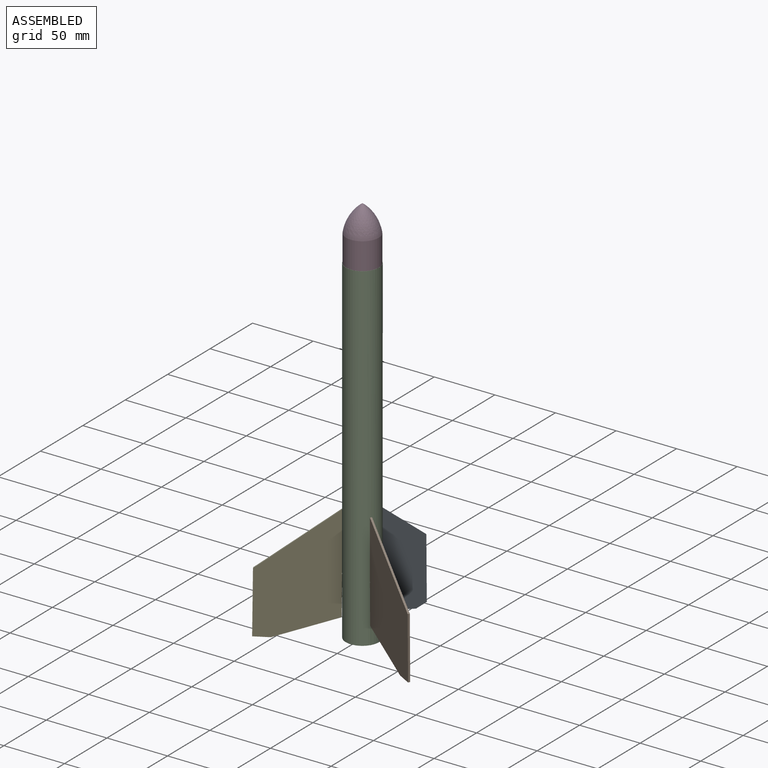
[diagram: assembled view]
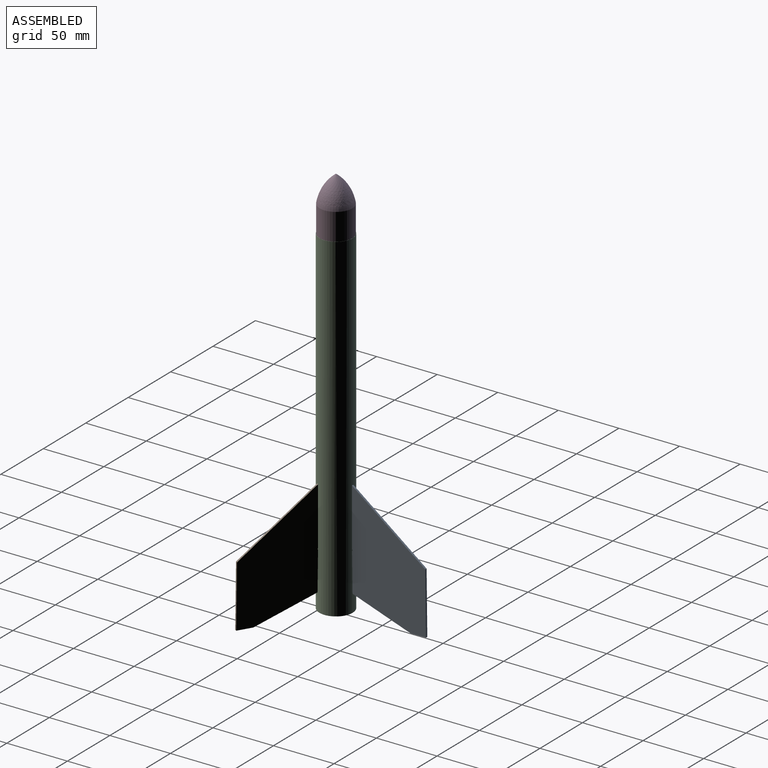
[diagram: assembled view, second angle]
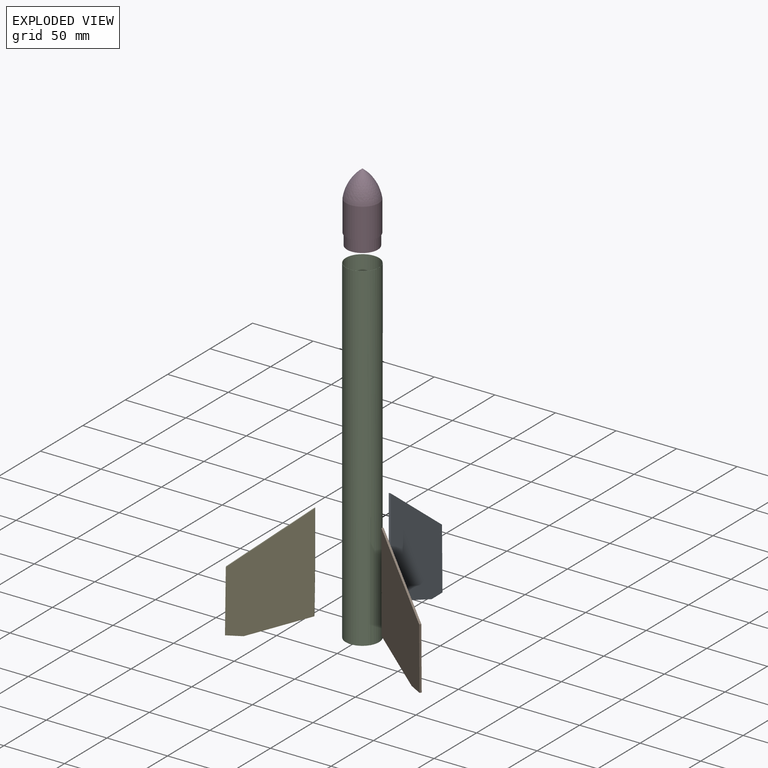
[diagram: exploded view]
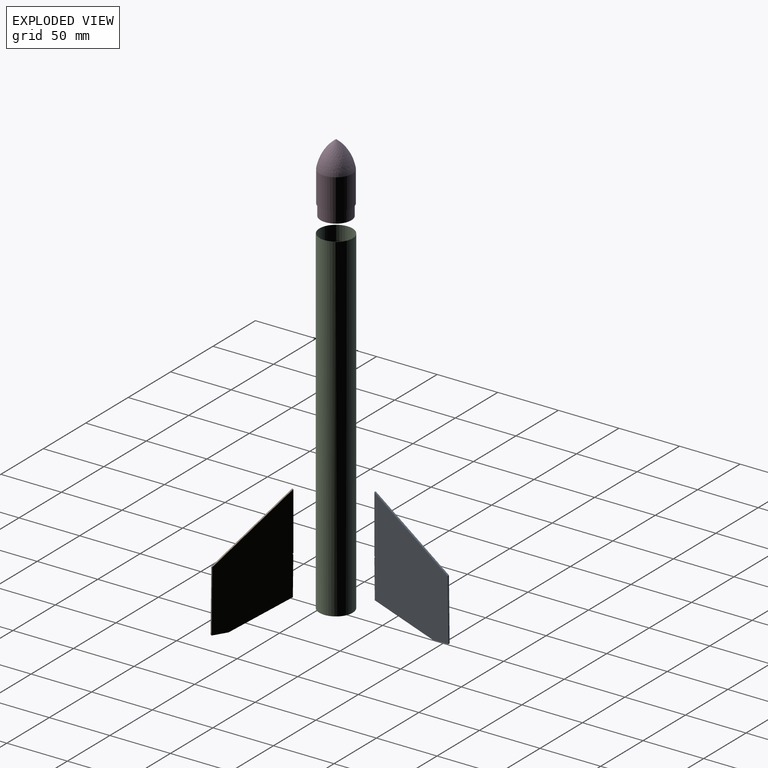
[diagram: exploded view, second angle]
ASSEMBLY  parts=5 mates=4
PART A: 10 faces, bbox 60.5x1.6x97.9 mm
  f0: plane 12.7x1.59mm, normal (0,0,-1), area 20.2mm2, adj f1,f7,f8,f9
  f1: plane 50.8x1.59mm, normal (1,0,0), area 80.6mm2, adj f0,f2,f8,f9
  f2: plane 59.92x47.07mm, normal (0.62,0,0.79), area 121mm2, adj f1,f3,f8,f9
  f3: plane 47.62x1.59mm, normal (-1,0,0.01), area 75.6mm2, adj f2,f4,f8,f9
  f4: plane 1.59x0.59mm, normal (-0.74,0,-0.67), area 1.3mm2, adj f3,f5,f8,f9
  f5: plane 1.59x0.59mm, normal (-0.74,0,0.67), area 1.3mm2, adj f4,f6,f8,f9
  f6: plane 31.75x1.59mm, normal (-1,0,0), area 50.4mm2, adj f5,f7,f8,f9
  f7: plane 47.75x17.33mm, normal (-0.34,0,-0.94), area 80.6mm2, adj f0,f6,f8,f9
  f8: plane 97.87x60.45mm, normal (0,-1,0), area 4079.8mm2, adj f0,f1,f2,f3,f4,f5,f6,f7
  f9: plane 97.87x60.45mm, normal (0,1,0), area 4079.8mm2, adj f0,f1,f2,f3,f4,f5,f6,f7
PART B: same geometry as A
PART C: 16 faces, bbox 27.4x27.5x279.4 mm
  f0: cylinder r=13.72mm len=279.4mm, axis (0,0,-1), area 24021.6mm2, adj f2,f3,f4,f5,f7,f8,f9,f11
  f1: cylinder r=13.59mm len=279.4mm, axis (0,0,-1), area 23855.8mm2, adj f2,f3
  f2: plane 27.43x27.43mm, normal (0,0,1), area 10.9mm2, adj f0,f1
  f3: plane 27.48x27.43mm, normal (0,0,-1), area 10.9mm2, adj f0,f1,f4,f5,f6,f8,f9,f10
  f4: plane 95.25x0.03mm, normal (-0.5,0.87,0), area 3.4mm2, adj f0,f3,f6,f7
  f5: plane 95.25x0.03mm, normal (0.54,-0.84,0), area 3.4mm2, adj f0,f3,f6,f7
  f6: plane 95.25x0.16mm, normal (-0.87,-0.5,0), area 17.8mm2, adj f3,f4,f5,f7
  f7: plane 0.18x0.12mm, normal (0,0,1), area 0mm2, adj f0,f4,f5,f6
  f8: plane 95.25x0.03mm, normal (-0.5,-0.87,0), area 3.5mm2, adj f0,f3,f10,f11
  f9: plane 95.25x0.03mm, normal (0.53,0.85,0), area 3.5mm2, adj f0,f3,f10,f11
  f10: plane 95.25x0.19mm, normal (0.87,-0.5,0), area 21.4mm2, adj f3,f8,f9,f11
  f11: plane 0.21x0.14mm, normal (0,0,1), area 0mm2, adj f0,f8,f9,f10
  f12: plane 95.25x0.05mm, normal (1,0,0), area 4.6mm2, adj f0,f3,f14,f15
  f13: plane 95.25x0.05mm, normal (-1,-0.05,0), area 4.6mm2, adj f0,f3,f14,f15
  f14: plane 95.25x0.19mm, normal (0,1,0), area 18.3mm2, adj f3,f12,f13,f15
  f15: plane 0.19x0.05mm, normal (0,0,1), area 0mm2, adj f0,f12,f13,f14
PART D: 5 faces, bbox 27x27x57.2 mm
  f0: plane 25.4x25.4mm, normal (0,0,-1), area 506.7mm2, adj f1
  f1: cylinder r=12.7mm len=25.4mm, axis (0,0,-1), area 760.1mm2, adj f0,f2
  f2: plane 26.99x26.99mm, normal (0,0,-1), area 65.3mm2, adj f1,f3
  f3: cylinder r=13.49mm len=26.99mm, axis (0,0,-1), area 2153.5mm2, adj f2,f4
  f4: revolved ~26.99x26.99mm, area 1378.3mm2, adj f3
PART E: same geometry as A
PLACE A rot(axis=(0.01,-0.01,1),90deg) t=(-92.28,92.36,-36)mm
PLACE B rot(axis=(-0.01,-0.02,-1),30deg) t=(-26.36,-19.13,-36)mm
PLACE C t=(-91.49,17.59,-34.05)mm
PLACE D t=(-91.49,17.59,232.65)mm
PLACE E rot(axis=(-0.01,0,-1),150deg) t=(-155.84,-20.49,-36)mm
MATE fastened B.f3 <-> C.f10  axis (-0.87,0.5,0) through (-79.59,10.69,13.57)mm
MATE fastened E.f3 <-> C.f6  axis (0.87,0.5,0) through (-103.4,10.71,13.57)mm
MATE fastened A.f3 <-> C.f14  axis (0,-1,0) through (-91.48,31.35,13.57)mm
MATE fastened D.f1 <-> C.f1  axis (0,0,-1) through (-91.49,17.59,232.65)mm
